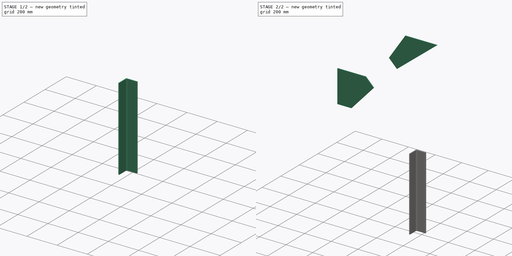
[diagram: build sequence overview — one tinted view per stage of 2, left to right]
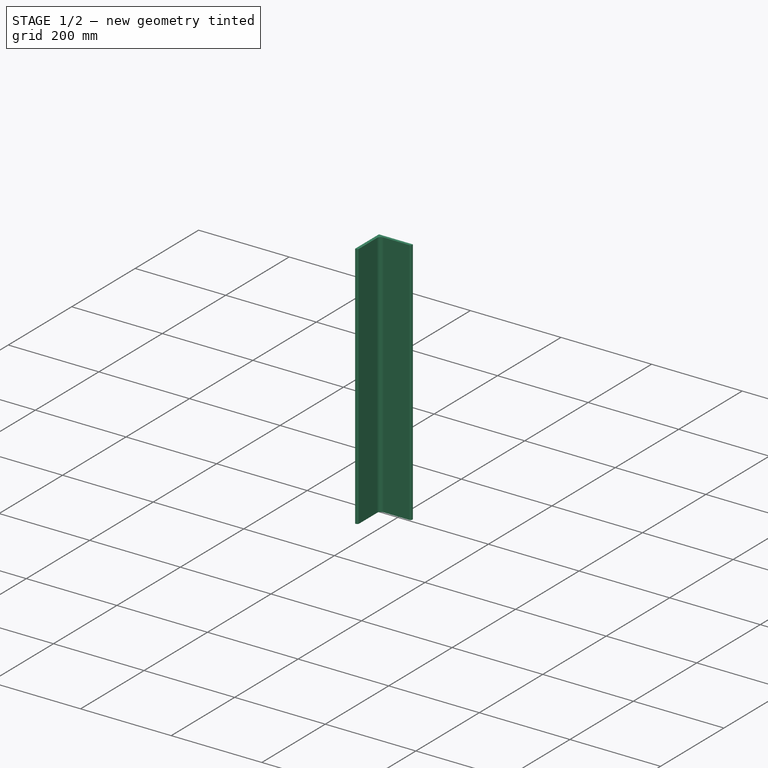
[diagram: stage 1 of 2 — iso view after this stage's code; geometry added in this stage tinted green]
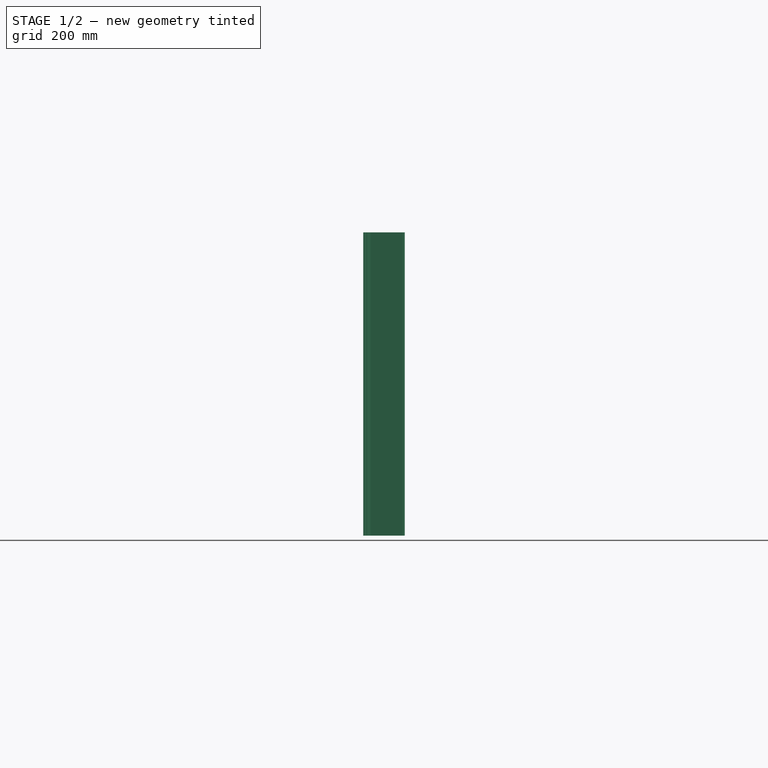
[diagram: stage 1 of 2 — front view after this stage's code; geometry added in this stage tinted green]
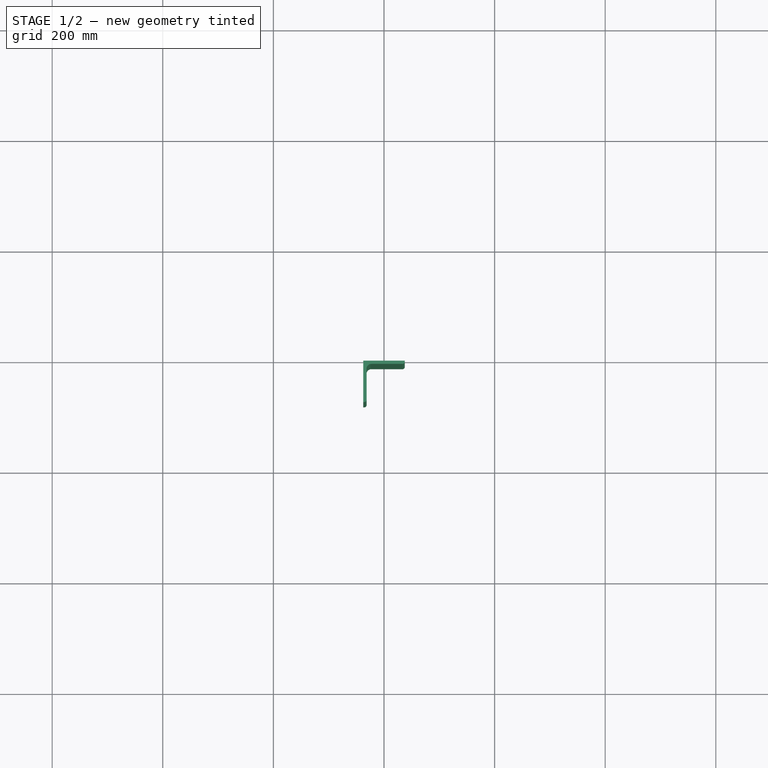
[diagram: stage 1 of 2 — top view after this stage's code; geometry added in this stage tinted green]
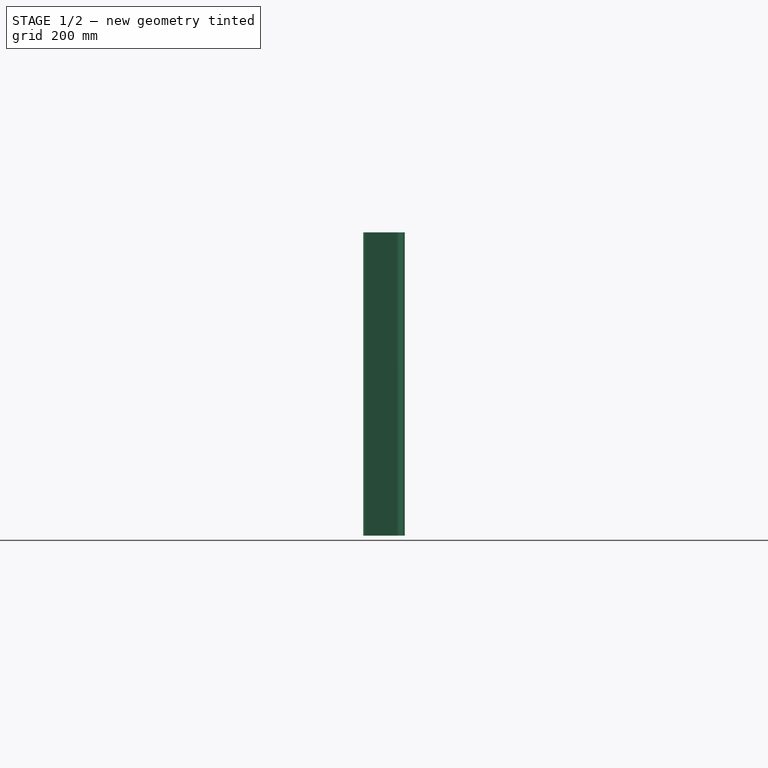
[diagram: stage 1 of 2 — right view after this stage's code; geometry added in this stage tinted green]
FCSTD DOCUMENT  (FreeCAD 1.0R39319 (Git))
Label: steelBrace04
License: All rights reserved
objects: App::Part×2, Sketcher::SketchObject×1, Part::Extrusion×1, Spreadsheet::Sheet×1, Part::FeaturePython×1
note: 4 computed .brp shape members not serialized (recipe doc carries the construction recipe); baked Part::Feature solids carry a one-line shape summary decoded from their .brp

FEATURE [Spreadsheet::Sheet] Spreadsheet
  cells = A1(key)='04; A2='W0; B2(W0)=600; A3='H0; B3(H0)=600; A4='k0; B4(k0)==90 ° - atan(H0 / W0); A5='La; B5(La)=300; A6='Lb; B6(Lb)==La - 150; A7='LL; B7(LL)==sqrt(W0 ^ 2 + H0 ^ 2); A8='Lc; B8(Lc)=30; A9='Lx; B9(Lx)==-W0 + Lb * sin(k0); A10='Ly; B10(Ly)==Lb * cos(k0); A11='B0; B11(B0)=75; A12='angle; B12(myAngle)='75x75x6; A13='20x20x3; B13=20; A14='25x25x3; B14=25; A15='30x30x3; B15=30; A16='30x30x5; B16=30; A17='40x40x3; B17=40; A18='40x40x5; B18=40; A19='50x50x4; B19=50; A20='50x50x6; B20=50; A21='65x65x8; B21=65; A22='65x65x9; B22=65; A23='75x75x6; B23=75; A24='75x75x9; B24=75; A25='75x75x12; B25=75; A26='90x90x7; B26=90; A27='90x90x10; B27=90; A28='90x90x13; B28=90; A29='100x100x7; B29=100; A30='100x100x10; B30=100; A31='100x100x13; B31=100; A32='130x130x9; B32=130; A33='130x130x12; B33=130; A34='130x130x15; B34=130; A35='150x150x12; B35=150; A36='150x150x15; B36=150; A37='150x150x19; B37=150; A38='200x200x15; B38=200; A39='200x200x20; B39=200; A40='200x200x25; B40=200
FEATURE [Part::FeaturePython] AngleSteel  # WARN: FeaturePython — macro-defined, semantics opaque (R4)
  A = 75
  B = 75
  JPN = 等辺山形鋼
  L = 548.528
  Placement = pos=(0,-43.5,-150) rot=(-0.57735,0.57735,-0.57735;2.0944rad)
  Solid = true
  Standard = L20x20x3  L=5500
  g0 = 7.85
  mass = 3.75753
  size = 10
  standard = SS_Equal
  t = 3
  type = 00_Angle
  expr: .Placement.Base.y = -(6 + Spreadsheet.B0 / 2)
  expr: .Placement.Base.z = -150
  expr: L = Spreadsheet.LL - Spreadsheet.La
FEATURE [App::Part] Part001  label="Angle"
  Group = -> [AngleSteel]
  Origin = -> Origin001
  Placement = pos=(0,0,600) rot=(0,1,0;0.785398rad)
  expr: .Placement.Base.z = Spreadsheet.H0
  expr: .Placement.Rotation.Angle = Spreadsheet.k0
FEATURE [App::Part] Part  label="steelBraceAssy"
  Group = -> [Spreadsheet,Sketch,Extrude,Part001]
  JPN = ブレース
  Origin = -> Origin
  Standard = L75x75x6  W0=600  H0=600
  g0 = 7.85
  mass = 8.21004
  material = SS41
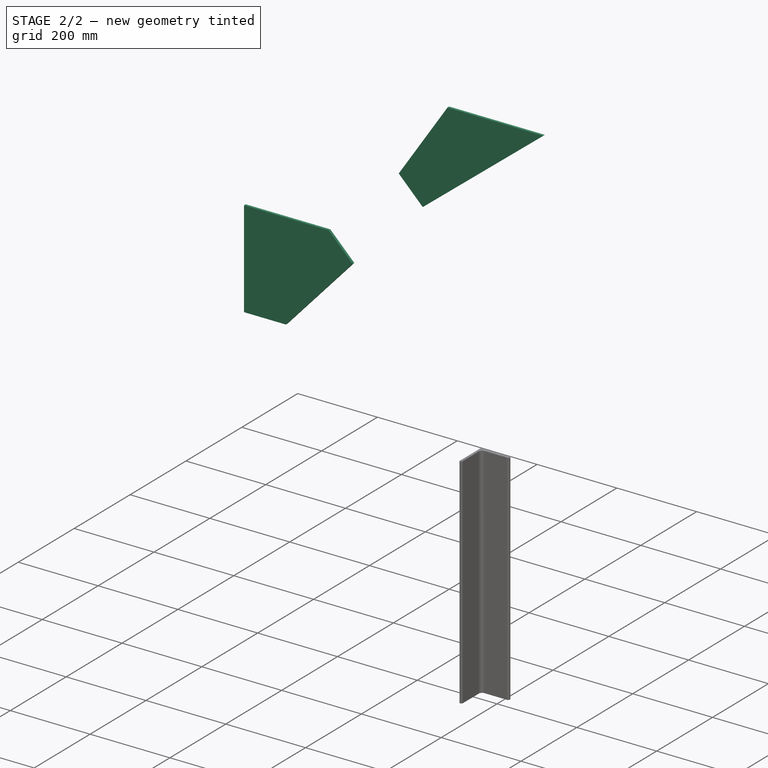
[diagram: stage 2 of 2 — iso view after this stage's code; geometry added in this stage tinted green]
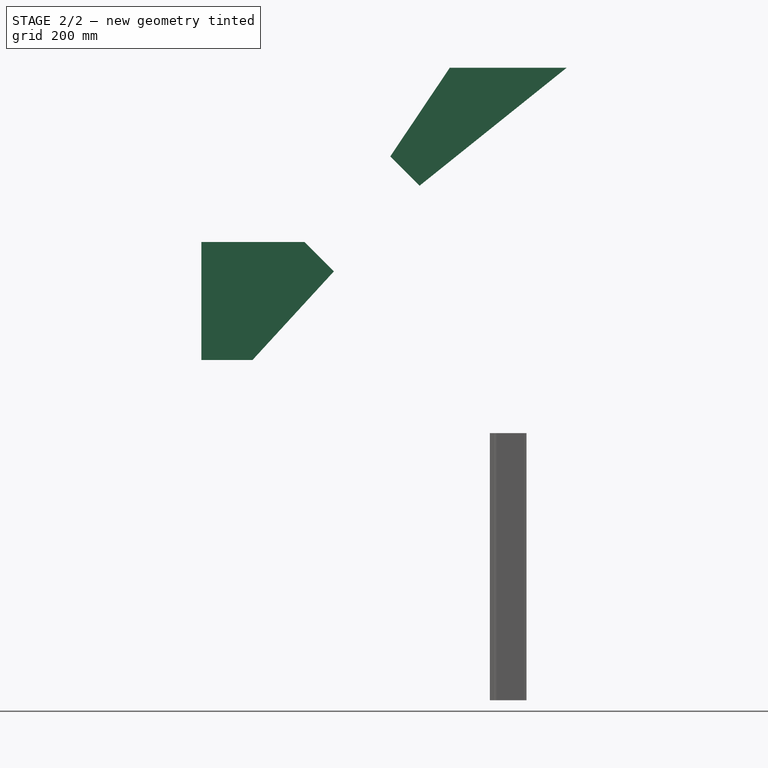
[diagram: stage 2 of 2 — front view after this stage's code; geometry added in this stage tinted green]
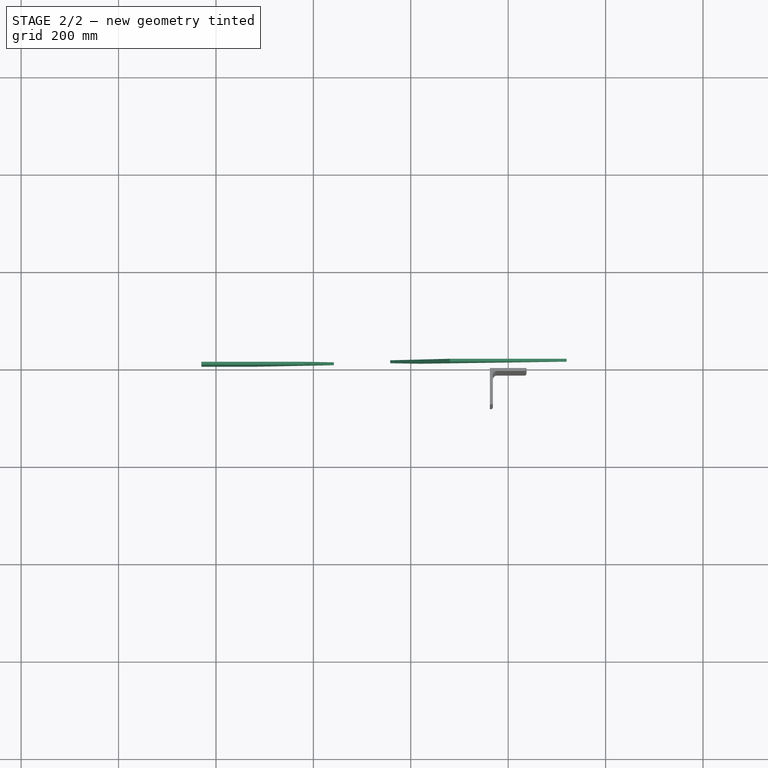
[diagram: stage 2 of 2 — top view after this stage's code; geometry added in this stage tinted green]
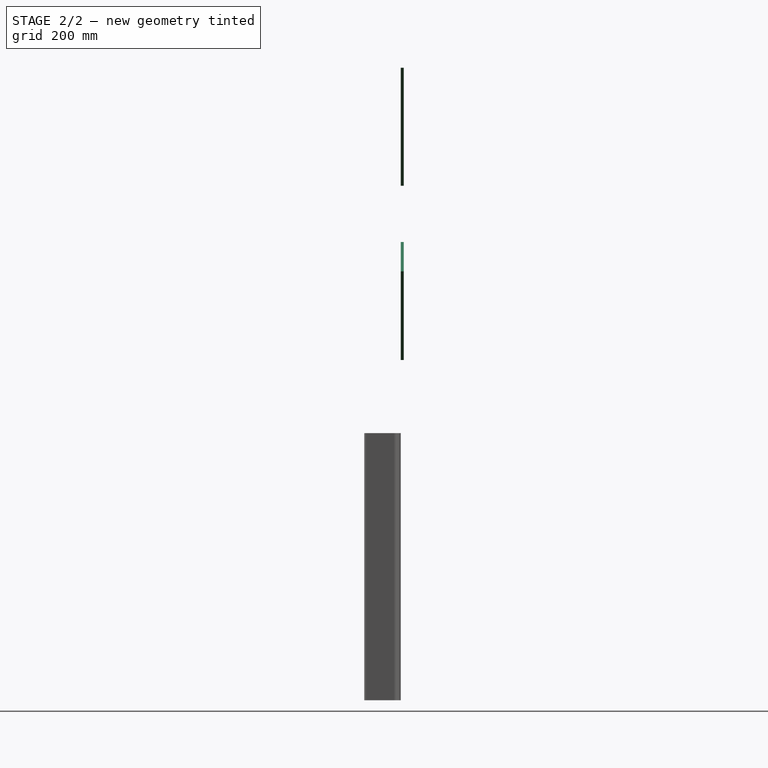
[diagram: stage 2 of 2 — right view after this stage's code; geometry added in this stage tinted green]
FEATURE [Sketcher::SketchObject] Sketch
  ArcFitTolerance = 0
  FullyConstrained = true
  MakeInternals = false
  MapMode = 5
  Placement = pos=(0,0,0) rot=(1,0,0;1.5708rad)
  expr: Constraints[10] = Spreadsheet.B0 + 10
  expr: Constraints[24] = Spreadsheet.Lc
  expr: Constraints[28] = Spreadsheet.W0
  expr: Constraints[30] = Spreadsheet.B0 + 10
  expr: Constraints[36] = Spreadsheet.La
  expr: Constraints[44] = Spreadsheet.La
  expr: Constraints[8] = Spreadsheet.H0
  sketch-geometry (18):
    g0: LineSegment [constr] StartX=0 StartY=0 StartZ=0 EndX=-600 EndY=0 EndZ=0
    g1: GeomPoint [constr] X=0 Y=0 Z=0
    g2: LineSegment [constr] StartX=0 StartY=600 StartZ=0 EndX=-600 EndY=0 EndZ=0
    g3: LineSegment StartX=0 StartY=600 StartZ=0 EndX=120 EndY=600 EndZ=0
    g4: LineSegment StartX=-600 StartY=0 StartZ=0 EndX=-525 EndY=0 EndZ=0
    g5: LineSegment StartX=-417.92 StartY=242.184 StartZ=0 EndX=-600 EndY=242.184 EndZ=0
    g6: LineSegment StartX=-182.08 StartY=357.816 StartZ=0 EndX=-242.184 EndY=417.92 EndZ=0
    g7: LineSegment StartX=-417.92 StartY=242.184 StartZ=0 EndX=-357.816 EndY=182.08 EndZ=0
    g8: LineSegment StartX=-357.816 StartY=182.08 StartZ=0 EndX=-525 EndY=0 EndZ=0
    g9: LineSegment StartX=-600 StartY=0 StartZ=0 EndX=-630 EndY=0 EndZ=0
    g10: LineSegment StartX=-630 StartY=0 StartZ=0 EndX=-630 EndY=242.184 EndZ=0
    g11: LineSegment StartX=-600 StartY=242.184 StartZ=0 EndX=-630 EndY=242.184 EndZ=0
    g12: LineSegment [constr] StartX=0 StartY=0 StartZ=0 EndX=0 EndY=600 EndZ=0
    g13: LineSegment StartX=-182.08 StartY=357.816 StartZ=0 EndX=120 EndY=600 EndZ=0
    g14: LineSegment StartX=120 StartY=600 StartZ=0 EndX=0 EndY=600 EndZ=0
    g15: LineSegment StartX=-242.184 StartY=417.92 StartZ=0 EndX=-120 EndY=600 EndZ=0
    g16: LineSegment StartX=0 StartY=600 StartZ=0 EndX=120 EndY=600 EndZ=0
    g17: LineSegment StartX=-120 StartY=600 StartZ=0 EndX=0 EndY=600 EndZ=0
  constraints (47):
    c: Horizontal(g0)
    c: Coincident(g1,g-1)
    c: Horizontal(g3)
    c: Horizontal(g4)
    c: Horizontal(g5)
    c: Coincident(g4,g0)
    c: PointOnObject(g2,g-2)
    c: Coincident(g2,g4)
    c: Distance(g2,g0) = 600
    c: Symmetric(g6,g6,g2)
    c: Distance(g6) = 85
    c: Coincident(g5,g7)
    c: PointOnObject(g1,g0)
    c: Coincident(g4,g8)
    c: DistanceX(g4,g4) = 75
    c: Coincident(g8,g7)
    c: Coincident(g4,g9)
    c: PointOnObject(g9,g-1)
    c: Coincident(g9,g10)
    c: Vertical(g10)
    c: Vertical(g4,g5)
    c: Coincident(g11,g5)
    c: Coincident(g11,g10)
    c: Horizontal(g11)
    c: DistanceX(g11,g11) = 30
    c: Coincident(g12,g1)
    c: Coincident(g12,g2)
    c: PointOnObject(g0,g12)
    c: DistanceX(g4,g0) = 600
    c: Symmetric(g7,g5,g2)
    c: Distance(g7) = 85
    c: Distance(g3) = 120
    c: Coincident(g14,g13)
    c: Coincident(g3,g14)
    c: Coincident(g2,g3)
    c: Coincident(g13,g6)
    c: Distance(g4,g7) = 300
    c: Coincident(g15,g6)
    c: Coincident(g16,g3)
    c: Coincident(g16,g3)
    c: Coincident(g17,g15)
    c: Coincident(g17,g3)
    c: Horizontal(g17)
    c: DistanceX(g17,g17) = 120
    c: Distance(g3,g6) = 300
    c: Coincident(g13,g3)
    c: Distance(g2,g2) = 848.528
FEATURE [Part::Extrusion] Extrude  label="steelBrace"
  Base = -> Sketch
  Dir = (0,-1,2e-16)
  DirMode = 2
  FaceMakerClass = Part::FaceMakerBullseye
  FaceMakerMode = 3
  LengthFwd = 6
  LengthRev = 0
  Solid = true
  Symmetric = false
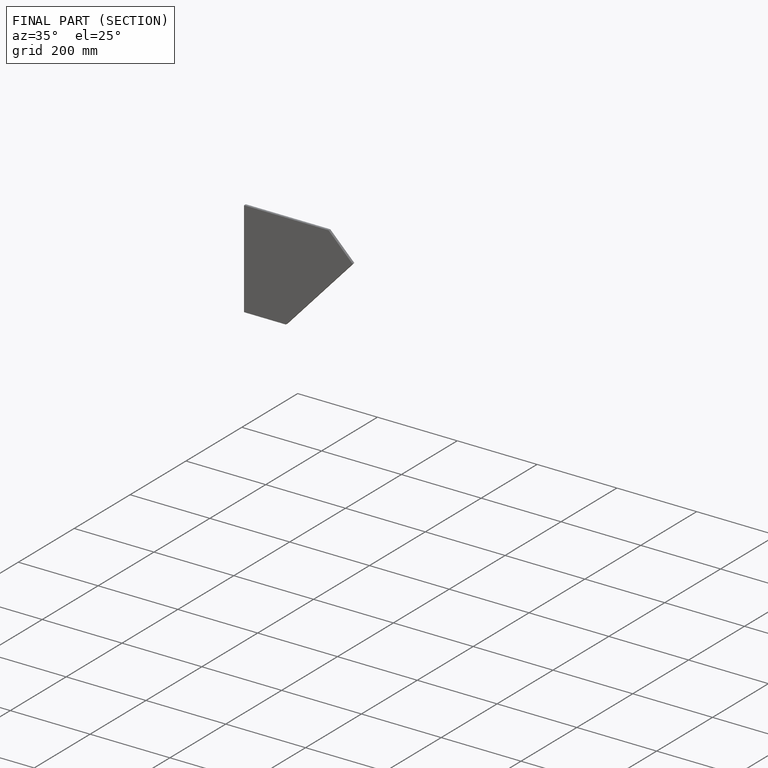
[diagram: finished part — half-section view (interior)]
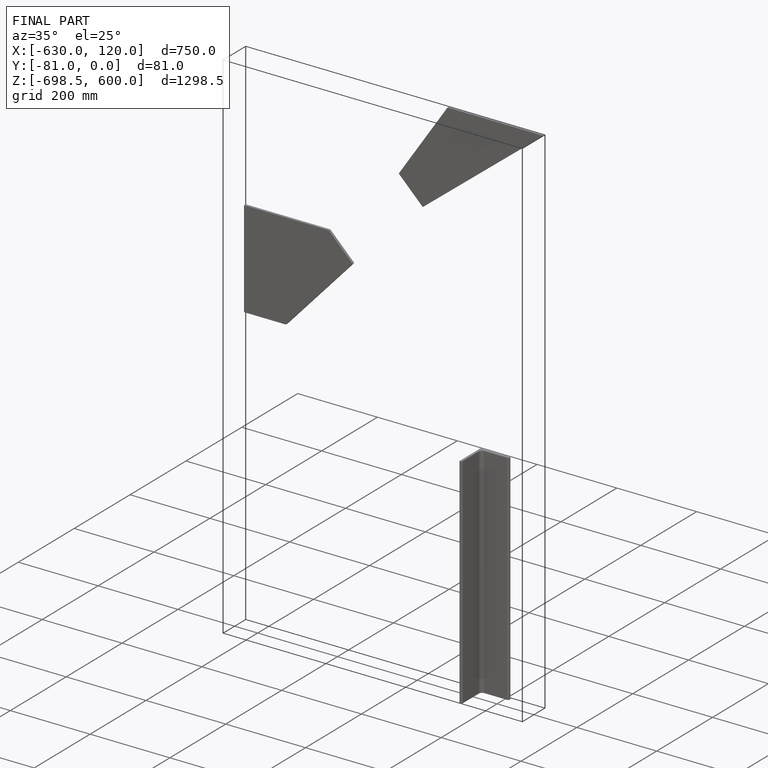
[diagram: finished part — iso view with bounding-box wireframe]
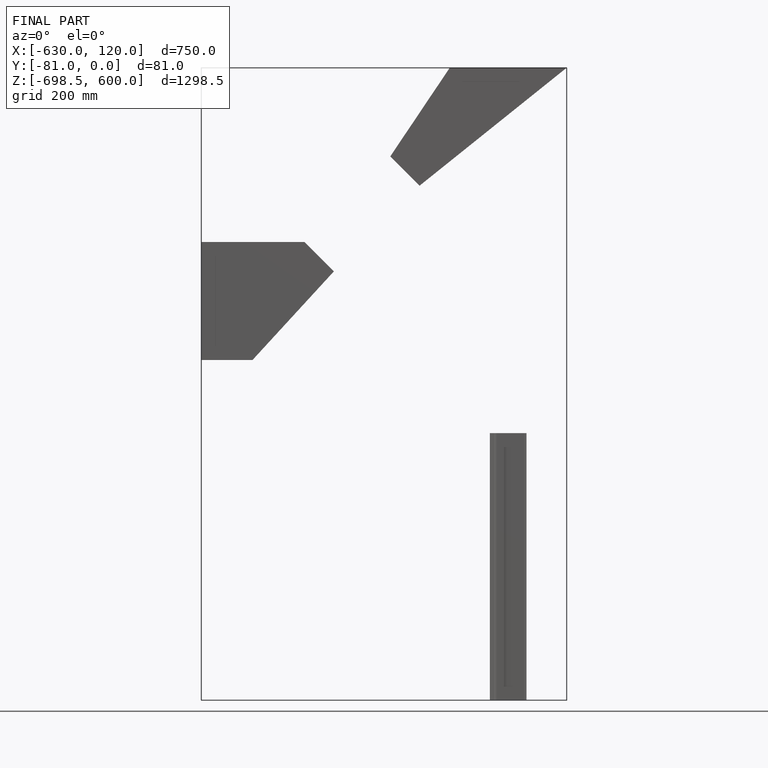
[diagram: finished part — front view with bounding-box wireframe]
